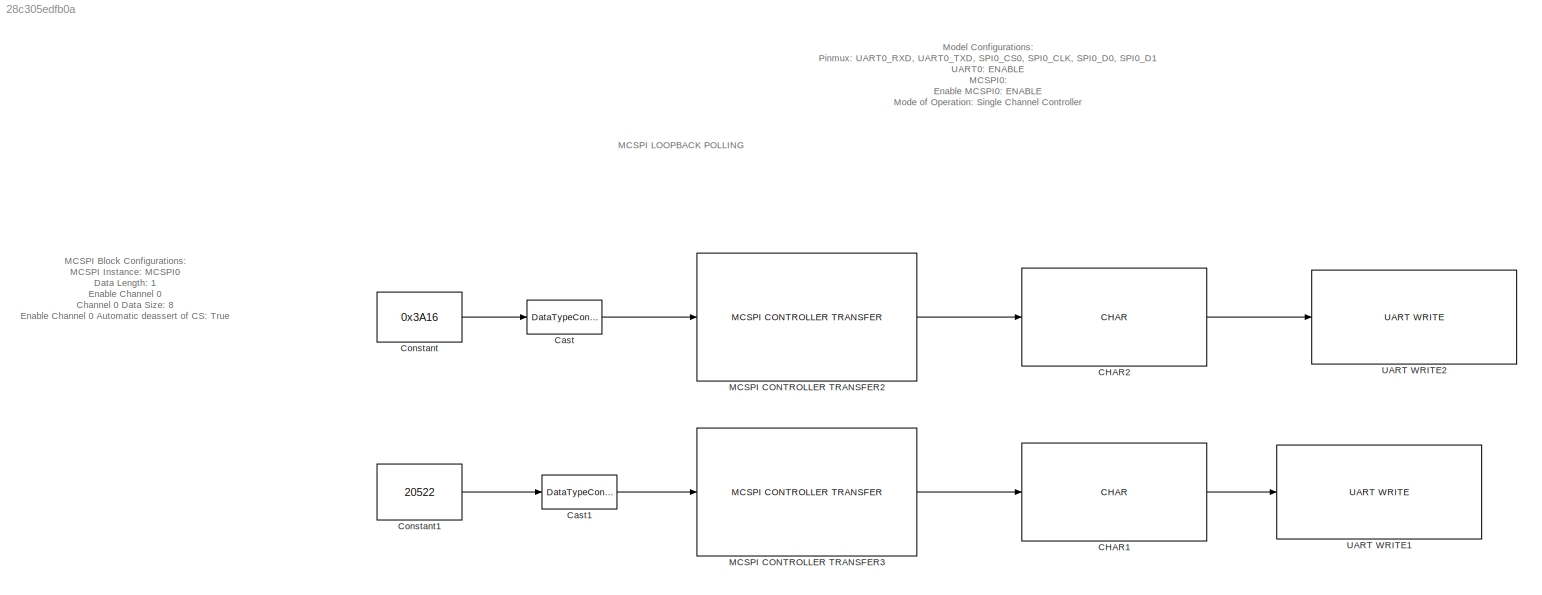
MODEL slx_28c305edfb0a
KIND model
CONFIG AbsTol = auto
CONFIG EnableMultiTasking = off
CONFIG FixedStep = auto
CONFIG MaxStep = auto
CONFIG MinStep = auto
CONFIG RelTol = 1e-3
CONFIG SampleTimeConstraint = Unconstrained
CONFIG SolverName = FixedStepAuto
CONFIG StartTime = 0.0
CONFIG StopTime = 10.0
BLOCK [Reference] CHAR1  REF=peripheral_library_blocks_am263x/CHAR
  SourceBlock = peripheral_library_blocks_am263x/CHAR
  SourceType = CHAR
BLOCK [Reference] CHAR2  REF=peripheral_library_blocks_am263x/CHAR
  SourceBlock = peripheral_library_blocks_am263x/CHAR
  SourceType = CHAR
BLOCK [DataTypeConversion] Cast
  OutDataTypeStr = uint16
  RndMeth = Floor
  SaturateOnIntegerOverflow = off
BLOCK [DataTypeConversion] Cast1
  OutDataTypeStr = uint16
  RndMeth = Floor
  SaturateOnIntegerOverflow = off
BLOCK [Constant] Constant
  OutDataTypeStr = uint16
  SampleTime = -1
  Value = 0x3A16
BLOCK [Constant] Constant1
  OutDataTypeStr = uint16
  SampleTime = -1
  Value = 20522
BLOCK [Reference] MCSPI CONTROLLER TRANSFER2  REF=peripheral_library_blocks_am263x/MCSPI CONTROLLER TRANSFER
  SourceBlock = peripheral_library_blocks_am263x/MCSPI CONTROLLER TRANSFER
  SourceType = MCSPI_CONTROLLER_TRANSFER_AM263X
BLOCK [Reference] MCSPI CONTROLLER TRANSFER3  REF=peripheral_library_blocks_am263x/MCSPI CONTROLLER TRANSFER
  SourceBlock = peripheral_library_blocks_am263x/MCSPI CONTROLLER TRANSFER
  SourceType = MCSPI_CONTROLLER_TRANSFER_AM263X
BLOCK [Reference] UART WRITE1  REF=peripheral_library_blocks_am263x/UART WRITE
  SourceBlock = peripheral_library_blocks_am263x/UART WRITE
  SourceType = UART_WRITE_AM263X
BLOCK [Reference] UART WRITE2  REF=peripheral_library_blocks_am263x/UART WRITE
  SourceBlock = peripheral_library_blocks_am263x/UART WRITE
  SourceType = UART_WRITE_AM263X
ANNOTATION (root): Model Configurations: Pinmux: UART0_RXD, UART0_TXD, SPI0_CS0, SPI0_CLK, SPI0_D0, SPI0_D1 UART0: ENABLE MCSPI0: Enable MCSPI0: ENABLE Mode of Operation: Single Channel Controller Pin Mode: 4 Pin Mode TR Mode: Transmit and Receive Only Input Select: D0 D0 TX Enable: Enable Transfer Mode: Polled Enable MCSPI0 Channel 0: ENABLE
ANNOTATION (root): MCSPI LOOPBACK POLLING
ANNOTATION (root): MCSPI Block Configurations: MCSPI Instance: MCSPI0 Data Length: 1 Enable Channel 0 Channel 0 Data Size: 8 Enable Channel 0 Automatic deassert of CS: True
LINE CHAR1:1 -> UART WRITE1:1
LINE CHAR2:1 -> UART WRITE2:1
LINE Cast1:1 -> MCSPI CONTROLLER TRANSFER3:1
LINE Cast:1 -> MCSPI CONTROLLER TRANSFER2:1
LINE Constant1:1 -> Cast1:1
LINE Constant:1 -> Cast:1
LINE MCSPI CONTROLLER TRANSFER2:1 -> CHAR2:1
LINE MCSPI CONTROLLER TRANSFER3:1 -> CHAR1:1
